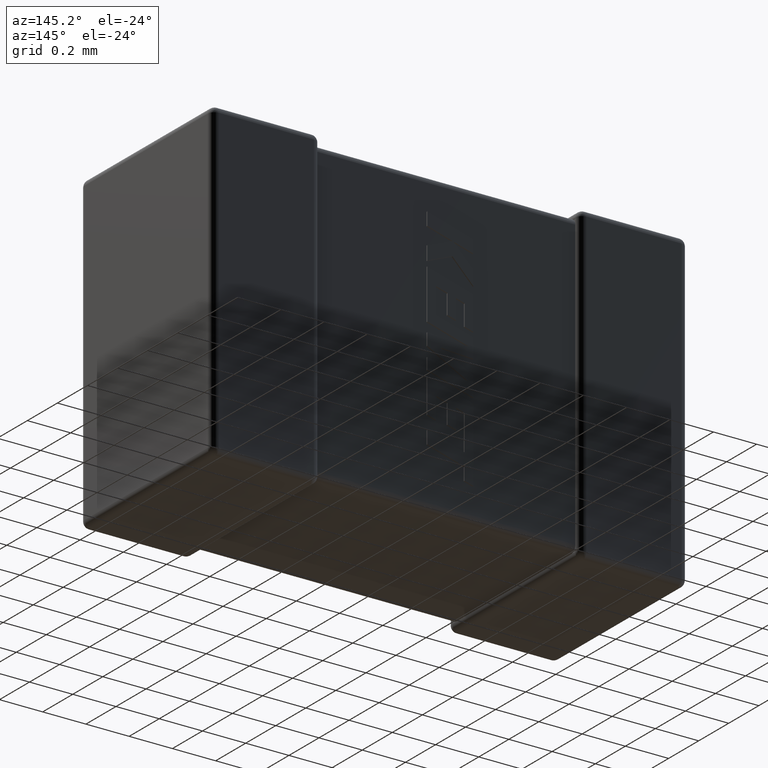
[diagram: clean part render]
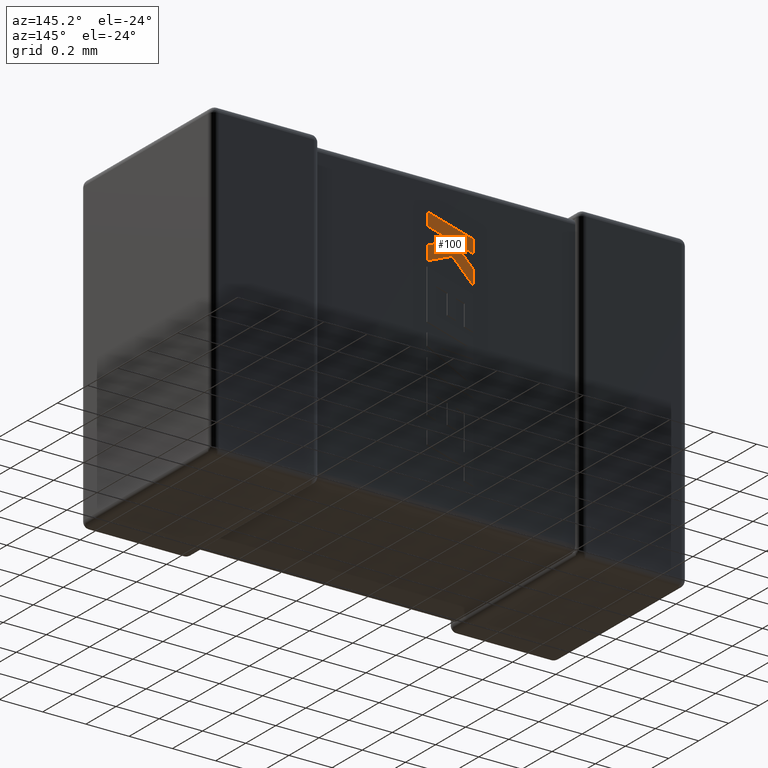
[diagram: same view with one face highlighted and labeled with its STEP entity id]
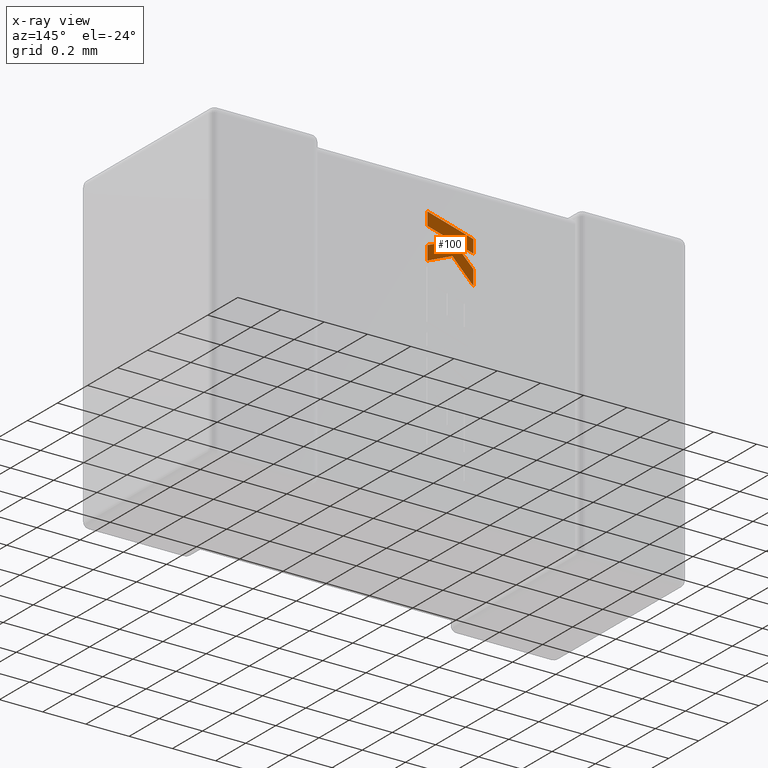
[diagram: x-ray of the same camera — body ghosted, the highlighted face saturated]
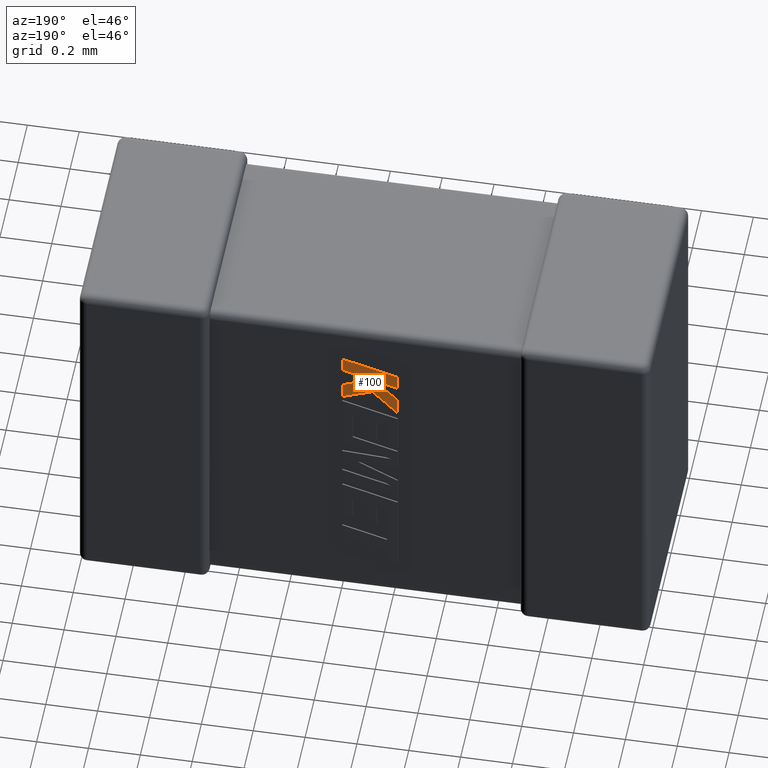
[diagram: same view with one face highlighted and labeled with its STEP entity id]
A machine part, auxiliary view. The second image highlights one B-rep face of the part: STEP entity #100.
The next image is the same camera in x-ray: the body ghosted, the highlighted face saturated — about 0% of this face is hidden behind the body in this view.
A second angle (auxiliary view) of the same face is appended — the face is thin or edge-on in the first view.
In plain terms, the highlighted planar face has unit normal (0, -1, 0).
Its self-contained STEP definition (entity closure, byte-faithful):
#3 = CARTESIAN_POINT ( 'NONE',  ( 1.187999999999999723, 0.8548400000000000443, -0.1812499999999999944 ) ) ;
#6 = VECTOR ( 'NONE', #29, 1000.000000000000114 ) ;
#29 = DIRECTION ( 'NONE',  ( -0.9237839814038673047, 0.000000000000000000, 0.3829140317376986125 ) ) ;
#90 = CARTESIAN_POINT ( 'NONE',  ( 0.9748339648551366254, 0.8548400000000000443, -0.3677425721875873799 ) ) ;
#100 = ADVANCED_FACE ( 'NONE', ( #3688 ), #3328, .F. ) ;
#138 = VECTOR ( 'NONE', #945, 1000.000000000000114 ) ;
#159 = VECTOR ( 'NONE', #1163, 1000.000000000000000 ) ;
#255 = VERTEX_POINT ( 'NONE', #790 ) ;
#464 = DIRECTION ( 'NONE',  ( 0.000000000000000000, -1.000000000000000000, 0.000000000000000000 ) ) ;
#475 = ORIENTED_EDGE ( 'NONE', *, *, #3158, .T. ) ;
#484 = DIRECTION ( 'NONE',  ( 0.000000000000000000, 0.000000000000000000, -1.000000000000000000 ) ) ;
#509 = VECTOR ( 'NONE', #1436, 1000.000000000000000 ) ;
#613 = LINE ( 'NONE', #1657, #3640 ) ;
#621 = VECTOR ( 'NONE', #3650, 1000.000000000000000 ) ;
#743 = VERTEX_POINT ( 'NONE', #2732 ) ;
#763 = CARTESIAN_POINT ( 'NONE',  ( 1.188000000000003498, 0.8548400000000000443, -0.2418646714761613081 ) ) ;
#771 = LINE ( 'NONE', #2595, #3517 ) ;
#790 = CARTESIAN_POINT ( 'NONE',  ( 1.072256628334915307, 0.8548400000000000443, -0.2750391145190215769 ) ) ;
#791 = CARTESIAN_POINT ( 'NONE',  ( 1.188000000000003498, 0.8548400000000000443, -0.3863575419125048205 ) ) ;
#945 = DIRECTION ( 'NONE',  ( -0.9612861490927336883, 0.000000000000000000, -0.2755520632520512270 ) ) ;
#946 = VECTOR ( 'NONE', #3939, 1000.000000000000000 ) ;
#972 = DIRECTION ( 'NONE',  ( 0.000000000000000000, 0.000000000000000000, -1.000000000000000000 ) ) ;
#1083 = LINE ( 'NONE', #2581, #621 ) ;
#1148 = EDGE_CURVE ( 'NONE', #3491, #4080, #613, .T. ) ;
#1163 = DIRECTION ( 'NONE',  ( 0.000000000000000000, 0.000000000000000000, 1.000000000000000000 ) ) ;
#1183 = CARTESIAN_POINT ( 'NONE',  ( 0.9748339648551366254, 0.8548400000000000443, -0.2425102325810264414 ) ) ;
#1320 = CARTESIAN_POINT ( 'NONE',  ( 0.9748339648551366254, 0.8548400000000000443, -0.2425102325810264414 ) ) ;
#1331 = LINE ( 'NONE', #2050, #3006 ) ;
#1389 = CARTESIAN_POINT ( 'NONE',  ( 1.188000000000003498, 0.8548400000000000443, -0.3214981126798991951 ) ) ;
#1418 = ORIENTED_EDGE ( 'NONE', *, *, #3841, .T. ) ;
#1436 = DIRECTION ( 'NONE',  ( 0.9280290862136694185, 0.000000000000000000, -0.3725077383644825324 ) ) ;
#1439 = ORIENTED_EDGE ( 'NONE', *, *, #1689, .T. ) ;
#1458 = ORIENTED_EDGE ( 'NONE', *, *, #1537, .T. ) ;
#1537 = EDGE_CURVE ( 'NONE', #2251, #3565, #2568, .T. ) ;
#1657 = CARTESIAN_POINT ( 'NONE',  ( 1.065736203641994173, 0.8548400000000000443, -0.2771488544881054450 ) ) ;
#1689 = EDGE_CURVE ( 'NONE', #743, #2303, #1331, .T. ) ;
#1809 = CARTESIAN_POINT ( 'NONE',  ( 1.072256628334912643, 0.8548400000000000443, -0.3383812162959441427 ) ) ;
#1832 = EDGE_CURVE ( 'NONE', #2303, #2708, #4303, .T. ) ;
#1924 = ORIENTED_EDGE ( 'NONE', *, *, #1832, .T. ) ;
#1980 = CARTESIAN_POINT ( 'NONE',  ( -0.2425353559703316564, 0.8548399999999998222, 0.003280988965688323017 ) ) ;
#2050 = CARTESIAN_POINT ( 'NONE',  ( 1.188000000000003498, 0.8548400000000000443, -0.3863575419125048205 ) ) ;
#2133 = EDGE_CURVE ( 'NONE', #3431, #3867, #3169, .T. ) ;
#2213 = LINE ( 'NONE', #3681, #3344 ) ;
#2250 = CARTESIAN_POINT ( 'NONE',  ( 0.9748339648551366254, 0.8548400000000000443, -0.3677425721875873799 ) ) ;
#2251 = VERTEX_POINT ( 'NONE', #3663 ) ;
#2276 = DIRECTION ( 'NONE',  ( -0.6995643972270459976, 0.000000000000000000, -0.7145695586381775044 ) ) ;
#2303 = VERTEX_POINT ( 'NONE', #791 ) ;
#2539 = CARTESIAN_POINT ( 'NONE',  ( 1.072256628334912643, 0.8548400000000000443, -0.3383812162959441427 ) ) ;
#2568 = LINE ( 'NONE', #1183, #159 ) ;
#2581 = CARTESIAN_POINT ( 'NONE',  ( 1.072256628334915307, 0.8548400000000000443, -0.2750391145190215769 ) ) ;
#2583 = EDGE_CURVE ( 'NONE', #2708, #3943, #2213, .T. ) ;
#2595 = CARTESIAN_POINT ( 'NONE',  ( 1.187999999999999723, 0.8548400000000000443, -0.1812499999999999944 ) ) ;
#2708 = VERTEX_POINT ( 'NONE', #2539 ) ;
#2732 = CARTESIAN_POINT ( 'NONE',  ( 1.188000000000003498, 0.8548400000000000443, -0.3214981126798991951 ) ) ;
#2911 = EDGE_LOOP ( 'NONE', ( #3723, #3971, #1418, #475, #1439, #1924, #3201, #3372, #4358, #3342, #1458 ) ) ;
#2958 = DIRECTION ( 'NONE',  ( 0.000000000000000000, 0.000000000000000000, 1.000000000000000000 ) ) ;
#2979 = LINE ( 'NONE', #90, #3368 ) ;
#3006 = VECTOR ( 'NONE', #972, 1000.000000000000000 ) ;
#3158 = EDGE_CURVE ( 'NONE', #255, #743, #3617, .T. ) ;
#3169 = LINE ( 'NONE', #4618, #946 ) ;
#3201 = ORIENTED_EDGE ( 'NONE', *, *, #2583, .T. ) ;
#3227 = EDGE_CURVE ( 'NONE', #3565, #3431, #771, .T. ) ;
#3307 = DIRECTION ( 'NONE',  ( 0.9610992334315860974, 0.000000000000000000, 0.2762033010252007426 ) ) ;
#3328 = PLANE ( 'NONE',  #4536 ) ;
#3342 = ORIENTED_EDGE ( 'NONE', *, *, #3751, .T. ) ;
#3344 = VECTOR ( 'NONE', #2276, 1000.000000000000000 ) ;
#3368 = VECTOR ( 'NONE', #2958, 1000.000000000000000 ) ;
#3372 = ORIENTED_EDGE ( 'NONE', *, *, #3532, .T. ) ;
#3426 = CARTESIAN_POINT ( 'NONE',  ( 1.065736203641994173, 0.8548400000000000443, -0.2771488544881054450 ) ) ;
#3431 = VERTEX_POINT ( 'NONE', #3 ) ;
#3491 = VERTEX_POINT ( 'NONE', #2250 ) ;
#3517 = VECTOR ( 'NONE', #3307, 1000.000000000000114 ) ;
#3532 = EDGE_CURVE ( 'NONE', #3943, #3491, #2979, .T. ) ;
#3565 = VERTEX_POINT ( 'NONE', #1320 ) ;
#3617 = LINE ( 'NONE', #1389, #509 ) ;
#3640 = VECTOR ( 'NONE', #4521, 1000.000000000000114 ) ;
#3650 = DIRECTION ( 'NONE',  ( -0.9612934544747571142, 0.000000000000000000, -0.2755265765475047868 ) ) ;
#3663 = CARTESIAN_POINT ( 'NONE',  ( 0.9748339648551366254, 0.8548400000000000443, -0.3032059234218354438 ) ) ;
#3681 = CARTESIAN_POINT ( 'NONE',  ( 0.9748339648551366254, 0.8548400000000000443, -0.4378935269853422851 ) ) ;
#3688 = FACE_OUTER_BOUND ( 'NONE', #2911, .T. ) ;
#3723 = ORIENTED_EDGE ( 'NONE', *, *, #3227, .T. ) ;
#3751 = EDGE_CURVE ( 'NONE', #4080, #2251, #4607, .T. ) ;
#3841 = EDGE_CURVE ( 'NONE', #3867, #255, #1083, .T. ) ;
#3867 = VERTEX_POINT ( 'NONE', #763 ) ;
#3939 = DIRECTION ( 'NONE',  ( 5.943634068010692500E-14, 0.000000000000000000, -1.000000000000000000 ) ) ;
#3943 = VERTEX_POINT ( 'NONE', #4411 ) ;
#3971 = ORIENTED_EDGE ( 'NONE', *, *, #2133, .T. ) ;
#4080 = VERTEX_POINT ( 'NONE', #3426 ) ;
#4180 = CARTESIAN_POINT ( 'NONE',  ( 0.9748339648551366254, 0.8548400000000000443, -0.3032059234218354438 ) ) ;
#4303 = LINE ( 'NONE', #1809, #6 ) ;
#4358 = ORIENTED_EDGE ( 'NONE', *, *, #1148, .T. ) ;
#4411 = CARTESIAN_POINT ( 'NONE',  ( 0.9748339648551366254, 0.8548400000000000443, -0.4378935269853422851 ) ) ;
#4521 = DIRECTION ( 'NONE',  ( 0.7083077534944017817, 0.000000000000000000, 0.7059037656364454127 ) ) ;
#4536 = AXIS2_PLACEMENT_3D ( 'NONE', #1980, #464, #484 ) ;
#4607 = LINE ( 'NONE', #4180, #138 ) ;
#4618 = CARTESIAN_POINT ( 'NONE',  ( 1.188000000000003498, 0.8548400000000000443, -0.2418646714761613081 ) ) ;